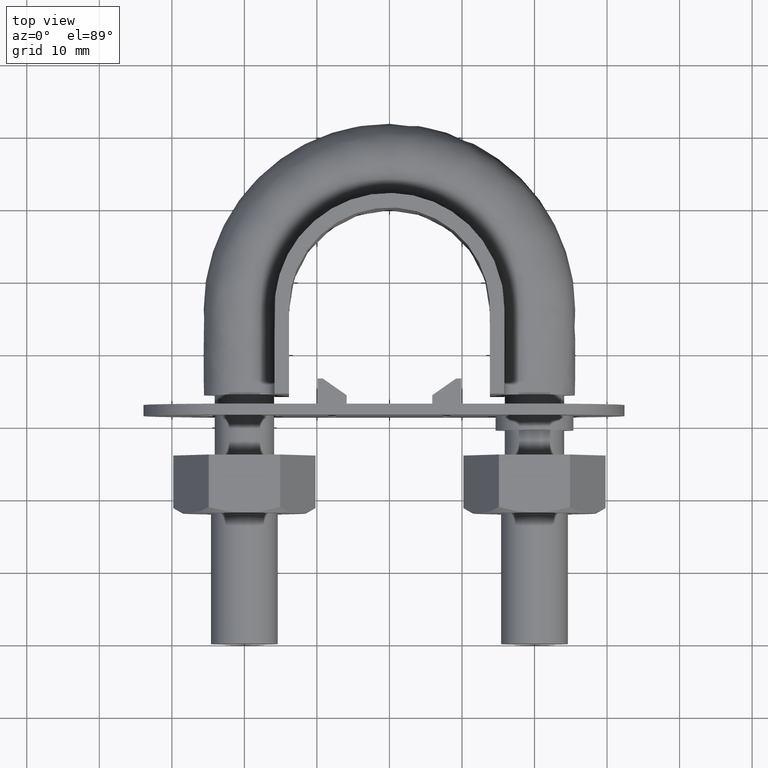
[diagram: clean part render]
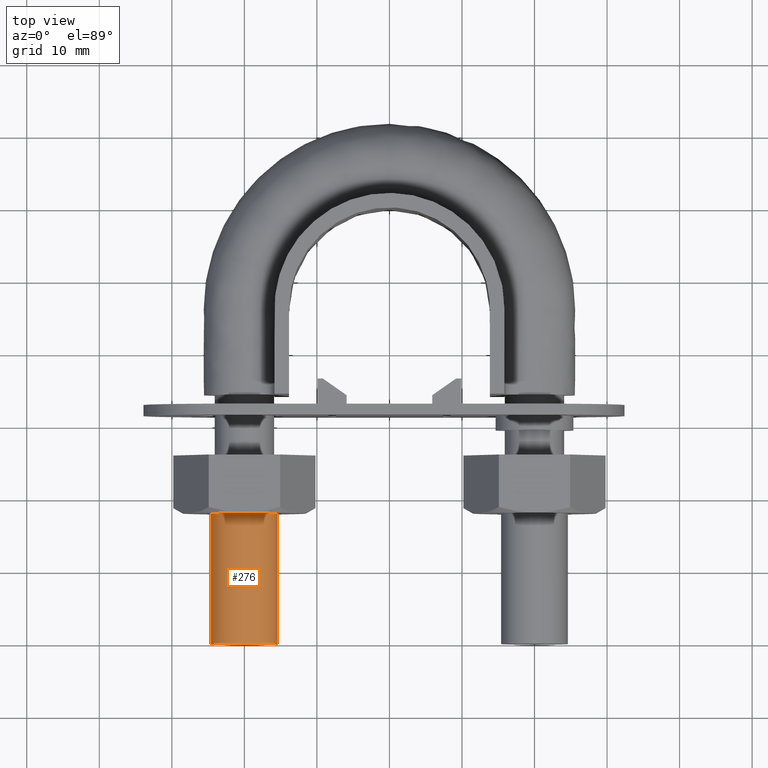
[diagram: same view with one face highlighted and labeled with its STEP entity id]
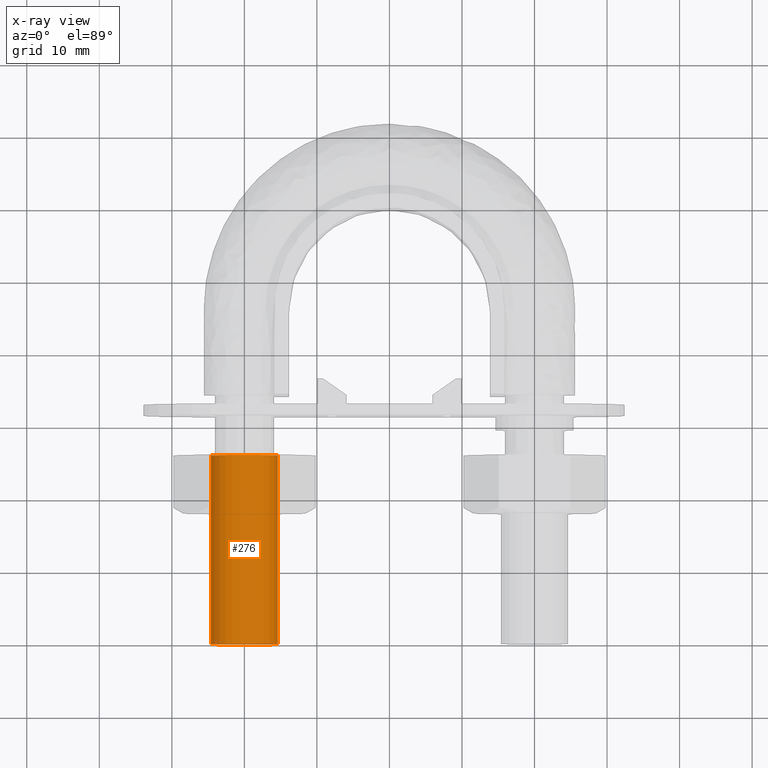
[diagram: x-ray of the same camera — body ghosted, the highlighted face saturated]
A machine part, top view. The second image highlights one B-rep face of the part: STEP entity #276.
The next image is the same camera in x-ray: the body ghosted, the highlighted face saturated — about 0% of this face is hidden behind the body in this view.
In plain terms, the highlighted cylindrical surface (bore or boss wall) has radius 4.6 mm, axis along (-0, -1, -0).
Its self-contained STEP definition (entity closure, byte-faithful):
#276 = ADVANCED_FACE( '', ( #388, #389 ), #390, .T. );
#388 = FACE_OUTER_BOUND( '', #1331, .T. );
#389 = FACE_OUTER_BOUND( '', #1332, .T. );
#390 = CYLINDRICAL_SURFACE( '', #1333, 4.60000000000000 );
#1331 = EDGE_LOOP( '', ( #1770 ) );
#1332 = EDGE_LOOP( '', ( #1771 ) );
#1333 = AXIS2_PLACEMENT_3D( '', #1772, #1773, #1774 );
#1770 = ORIENTED_EDGE( '', *, *, #2441, .F. );
#1771 = ORIENTED_EDGE( '', *, *, #2442, .T. );
#1772 = CARTESIAN_POINT( '', ( -20.0000000000000, 26.0000000000000, 1.59198825996909E-015 ) );
#1773 = DIRECTION( '', ( -4.89842541528951E-016, -1.00000000000000, -6.12303176911189E-017 ) );
#1774 = DIRECTION( '', ( 1.00000000000000, -4.89842541528951E-016, -2.24949108273321E-032 ) );
#2441 = EDGE_CURVE( '', #2663, #2663, #2664, .T. );
#2442 = EDGE_CURVE( '', #2665, #2665, #2666, .T. );
#2663 = VERTEX_POINT( '', #3192 );
#2664 = CIRCLE( '', #3193, 4.60000000000000 );
#2665 = VERTEX_POINT( '', #3194 );
#2666 = CIRCLE( '', #3195, 4.60000000000000 );
#3192 = CARTESIAN_POINT( '', ( -15.4000000000000, 7.54357513954585E-015, 3.46421626740914E-031 ) );
#3193 = AXIS2_PLACEMENT_3D( '', #3754, #3755, #3756 );
#3194 = CARTESIAN_POINT( '', ( -15.4000000000000, 26.0000000000000, 1.59198825996909E-015 ) );
#3195 = AXIS2_PLACEMENT_3D( '', #3757, #3758, #3759 );
#3754 = CARTESIAN_POINT( '', ( -20.0000000000000, 9.79685083057902E-015, 4.49898216546641E-031 ) );
#3755 = DIRECTION( '', ( -4.89842541528951E-016, -1.00000000000000, -6.12303176911189E-017 ) );
#3756 = DIRECTION( '', ( 1.00000000000000, -4.89842541528951E-016, -2.24949108273321E-032 ) );
#3757 = CARTESIAN_POINT( '', ( -20.0000000000000, 26.0000000000000, 1.59198825996909E-015 ) );
#3758 = DIRECTION( '', ( -4.89842541528951E-016, -1.00000000000000, -6.12303176911189E-017 ) );
#3759 = DIRECTION( '', ( 1.00000000000000, -4.89842541528951E-016, -2.24949108273321E-032 ) );